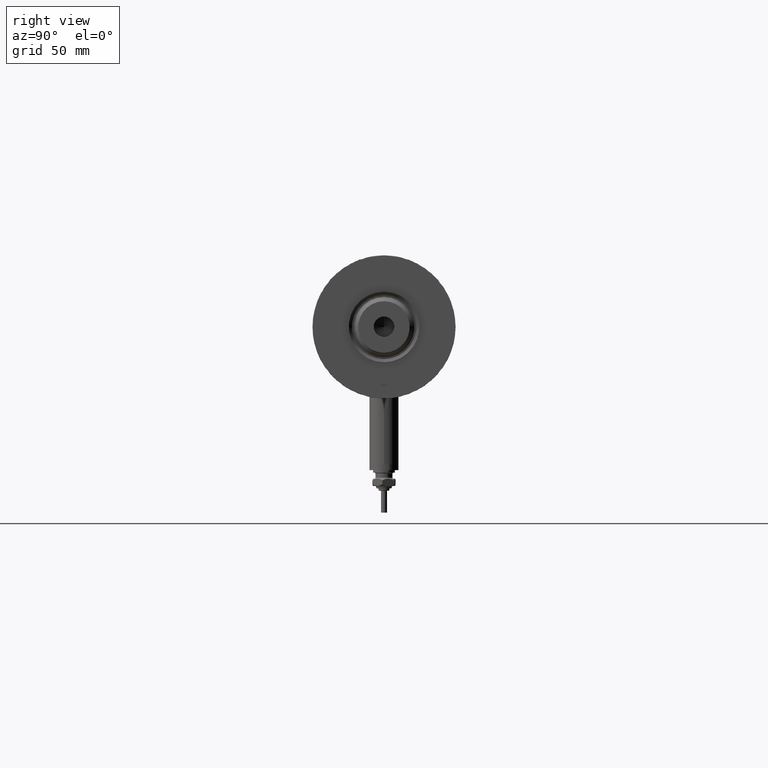
[diagram: clean part render]
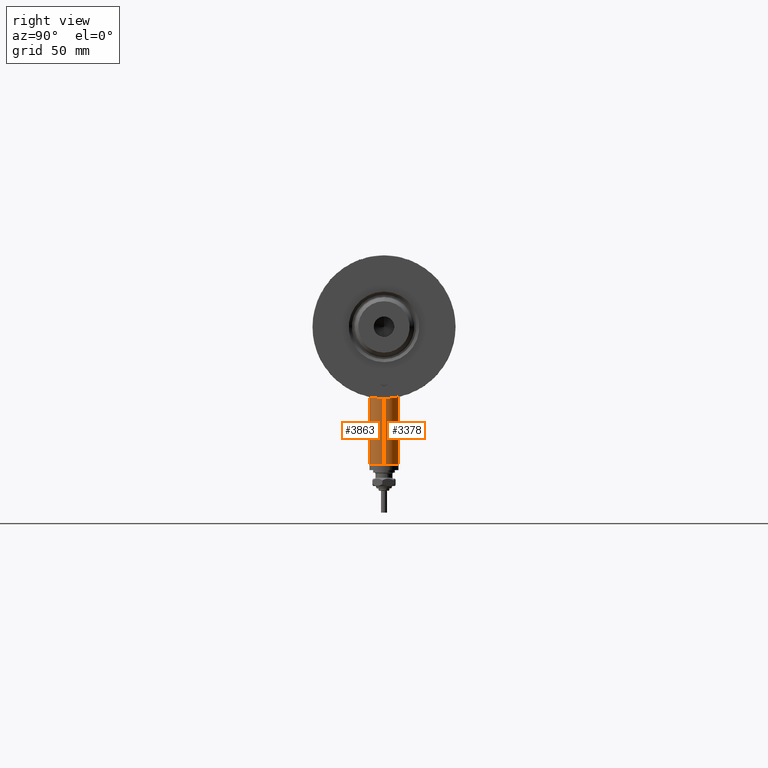
[diagram: same view with one multi-face feature highlighted, each face labeled with its STEP entity id]
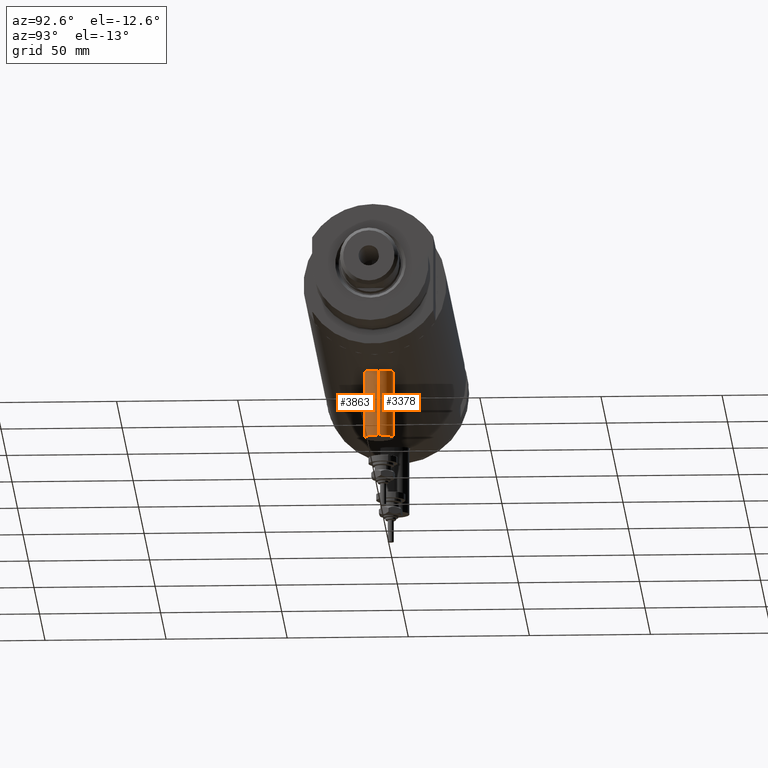
[diagram: same view with one multi-face feature highlighted, each face labeled with its STEP entity id]
A machine part, right view. The highlighted faces form ONE feature: a constant-radius fillet chain: 2 tangent blend faces with common blend radius 6 mm. The faces share edges in the B-rep.
A second angle (auxiliary view) of the same feature is appended — it is thin or edge-on in the first view.
Their STEP definitions:
[1] entity #3863 (Cylinder):
#33 = CARTESIAN_POINT ( 'NONE',  ( -56.60000000000000142, 0.000000000000000000, -66.29999999999999716 ) ) ;
#85 = DIRECTION ( 'NONE',  ( 1.000000000000000000, -0.000000000000000000, -0.000000000000000000 ) ) ;
#249 = CARTESIAN_POINT ( 'NONE',  ( -28.30000000000000071, 0.000000000000000000, -72.29999999999999716 ) ) ;
#455 = DIRECTION ( 'NONE',  ( 0.000000000000000000, 0.000000000000000000, -1.000000000000000000 ) ) ;
#576 = LINE ( 'NONE', #5512, #4203 ) ;
#633 = DIRECTION ( 'NONE',  ( -1.000000000000000000, 0.000000000000000000, 0.000000000000000000 ) ) ;
#687 = DIRECTION ( 'NONE',  ( 0.000000000000000000, 0.000000000000000000, 1.000000000000000000 ) ) ;
#767 = CARTESIAN_POINT ( 'NONE',  ( -28.30000000000000071, 0.000000000000000000, -66.29999999999999716 ) ) ;
#1338 = FACE_OUTER_BOUND ( 'NONE', #1771, .T. ) ;
#1391 = VERTEX_POINT ( 'NONE', #2346 ) ;
#1612 = VERTEX_POINT ( 'NONE', #249 ) ;
#1771 = EDGE_LOOP ( 'NONE', ( #5263, #5322, #4844, #1911 ) ) ;
#1911 = ORIENTED_EDGE ( 'NONE', *, *, #4701, .T. ) ;
#1912 = CIRCLE ( 'NONE', #4757, 6.000000000000005329 ) ;
#2207 = VERTEX_POINT ( 'NONE', #5132 ) ;
#2275 = DIRECTION ( 'NONE',  ( 1.000000000000000000, -0.000000000000000000, -0.000000000000000000 ) ) ;
#2342 = LINE ( 'NONE', #5521, #4171 ) ;
#2346 = CARTESIAN_POINT ( 'NONE',  ( -28.30000000000000071, 7.347880794884119736E-16, -60.29999999999999005 ) ) ;
#2863 = DIRECTION ( 'NONE',  ( 0.000000000000000000, 0.000000000000000000, 1.000000000000000000 ) ) ;
#3028 = DIRECTION ( 'NONE',  ( -1.000000000000000000, 0.000000000000000000, 0.000000000000000000 ) ) ;
#3135 = CYLINDRICAL_SURFACE ( 'NONE', #3605, 6.000000000000005329 ) ;
#3302 = EDGE_CURVE ( 'NONE', #3928, #1391, #2342, .T. ) ;
#3585 = DIRECTION ( 'NONE',  ( 1.000000000000000000, -0.000000000000000000, -0.000000000000000000 ) ) ;
#3605 = AXIS2_PLACEMENT_3D ( 'NONE', #33, #2275, #455 ) ;
#3614 = CARTESIAN_POINT ( 'NONE',  ( -56.60000000000000142, 7.347880794884119736E-16, -60.29999999999999005 ) ) ;
#3724 = CARTESIAN_POINT ( 'NONE',  ( -56.60000000000000142, 0.000000000000000000, -66.29999999999999716 ) ) ;
#3863 = ADVANCED_FACE ( 'NONE', ( #1338 ), #3135, .T. ) ;
#3928 = VERTEX_POINT ( 'NONE', #3614 ) ;
#4171 = VECTOR ( 'NONE', #3585, 1000.000000000000000 ) ;
#4203 = VECTOR ( 'NONE', #85, 1000.000000000000000 ) ;
#4282 = CIRCLE ( 'NONE', #5741, 6.000000000000005329 ) ;
#4367 = EDGE_CURVE ( 'NONE', #2207, #3928, #4282, .T. ) ;
#4701 = EDGE_CURVE ( 'NONE', #1612, #1391, #1912, .T. ) ;
#4757 = AXIS2_PLACEMENT_3D ( 'NONE', #767, #3028, #687 ) ;
#4844 = ORIENTED_EDGE ( 'NONE', *, *, #5821, .T. ) ;
#5132 = CARTESIAN_POINT ( 'NONE',  ( -56.60000000000000142, 0.000000000000000000, -72.29999999999999716 ) ) ;
#5263 = ORIENTED_EDGE ( 'NONE', *, *, #3302, .F. ) ;
#5322 = ORIENTED_EDGE ( 'NONE', *, *, #4367, .F. ) ;
#5512 = CARTESIAN_POINT ( 'NONE',  ( -56.60000000000000142, 0.000000000000000000, -72.29999999999999716 ) ) ;
#5521 = CARTESIAN_POINT ( 'NONE',  ( -56.60000000000000142, 7.347880794884122694E-16, -60.29999999999999005 ) ) ;
#5741 = AXIS2_PLACEMENT_3D ( 'NONE', #3724, #633, #2863 ) ;
#5821 = EDGE_CURVE ( 'NONE', #2207, #1612, #576, .T. ) ;
[2] entity #3378 (Cylinder):
#11 = DIRECTION ( 'NONE',  ( 0.000000000000000000, 0.000000000000000000, 1.000000000000000000 ) ) ;
#85 = DIRECTION ( 'NONE',  ( 1.000000000000000000, -0.000000000000000000, -0.000000000000000000 ) ) ;
#191 = DIRECTION ( 'NONE',  ( -1.000000000000000000, 0.000000000000000000, 0.000000000000000000 ) ) ;
#249 = CARTESIAN_POINT ( 'NONE',  ( -28.30000000000000071, 0.000000000000000000, -72.29999999999999716 ) ) ;
#300 = ORIENTED_EDGE ( 'NONE', *, *, #3523, .T. ) ;
#576 = LINE ( 'NONE', #5512, #4203 ) ;
#814 = ORIENTED_EDGE ( 'NONE', *, *, #1658, .F. ) ;
#1066 = CIRCLE ( 'NONE', #2009, 6.000000000000005329 ) ;
#1130 = EDGE_LOOP ( 'NONE', ( #814, #2637, #300, #3718 ) ) ;
#1313 = DIRECTION ( 'NONE',  ( -1.000000000000000000, 0.000000000000000000, 0.000000000000000000 ) ) ;
#1391 = VERTEX_POINT ( 'NONE', #2346 ) ;
#1520 = AXIS2_PLACEMENT_3D ( 'NONE', #4067, #2724, #2789 ) ;
#1612 = VERTEX_POINT ( 'NONE', #249 ) ;
#1658 = EDGE_CURVE ( 'NONE', #3928, #2207, #1066, .T. ) ;
#1808 = CIRCLE ( 'NONE', #2468, 6.000000000000005329 ) ;
#1894 = FACE_OUTER_BOUND ( 'NONE', #1130, .T. ) ;
#1960 = DIRECTION ( 'NONE',  ( 0.000000000000000000, 0.000000000000000000, 1.000000000000000000 ) ) ;
#2009 = AXIS2_PLACEMENT_3D ( 'NONE', #5374, #1313, #11 ) ;
#2207 = VERTEX_POINT ( 'NONE', #5132 ) ;
#2342 = LINE ( 'NONE', #5521, #4171 ) ;
#2346 = CARTESIAN_POINT ( 'NONE',  ( -28.30000000000000071, 7.347880794884119736E-16, -60.29999999999999005 ) ) ;
#2468 = AXIS2_PLACEMENT_3D ( 'NONE', #5680, #191, #1960 ) ;
#2637 = ORIENTED_EDGE ( 'NONE', *, *, #3302, .T. ) ;
#2724 = DIRECTION ( 'NONE',  ( 1.000000000000000000, -0.000000000000000000, -0.000000000000000000 ) ) ;
#2789 = DIRECTION ( 'NONE',  ( 0.000000000000000000, 0.000000000000000000, -1.000000000000000000 ) ) ;
#3302 = EDGE_CURVE ( 'NONE', #3928, #1391, #2342, .T. ) ;
#3378 = ADVANCED_FACE ( 'NONE', ( #1894 ), #5069, .T. ) ;
#3523 = EDGE_CURVE ( 'NONE', #1391, #1612, #1808, .T. ) ;
#3585 = DIRECTION ( 'NONE',  ( 1.000000000000000000, -0.000000000000000000, -0.000000000000000000 ) ) ;
#3614 = CARTESIAN_POINT ( 'NONE',  ( -56.60000000000000142, 7.347880794884119736E-16, -60.29999999999999005 ) ) ;
#3718 = ORIENTED_EDGE ( 'NONE', *, *, #5821, .F. ) ;
#3928 = VERTEX_POINT ( 'NONE', #3614 ) ;
#4067 = CARTESIAN_POINT ( 'NONE',  ( -56.60000000000000142, 0.000000000000000000, -66.29999999999999716 ) ) ;
#4171 = VECTOR ( 'NONE', #3585, 1000.000000000000000 ) ;
#4203 = VECTOR ( 'NONE', #85, 1000.000000000000000 ) ;
#5069 = CYLINDRICAL_SURFACE ( 'NONE', #1520, 6.000000000000005329 ) ;
#5132 = CARTESIAN_POINT ( 'NONE',  ( -56.60000000000000142, 0.000000000000000000, -72.29999999999999716 ) ) ;
#5374 = CARTESIAN_POINT ( 'NONE',  ( -56.60000000000000142, 0.000000000000000000, -66.29999999999999716 ) ) ;
#5512 = CARTESIAN_POINT ( 'NONE',  ( -56.60000000000000142, 0.000000000000000000, -72.29999999999999716 ) ) ;
#5521 = CARTESIAN_POINT ( 'NONE',  ( -56.60000000000000142, 7.347880794884122694E-16, -60.29999999999999005 ) ) ;
#5680 = CARTESIAN_POINT ( 'NONE',  ( -28.30000000000000071, 0.000000000000000000, -66.29999999999999716 ) ) ;
#5821 = EDGE_CURVE ( 'NONE', #2207, #1612, #576, .T. ) ;